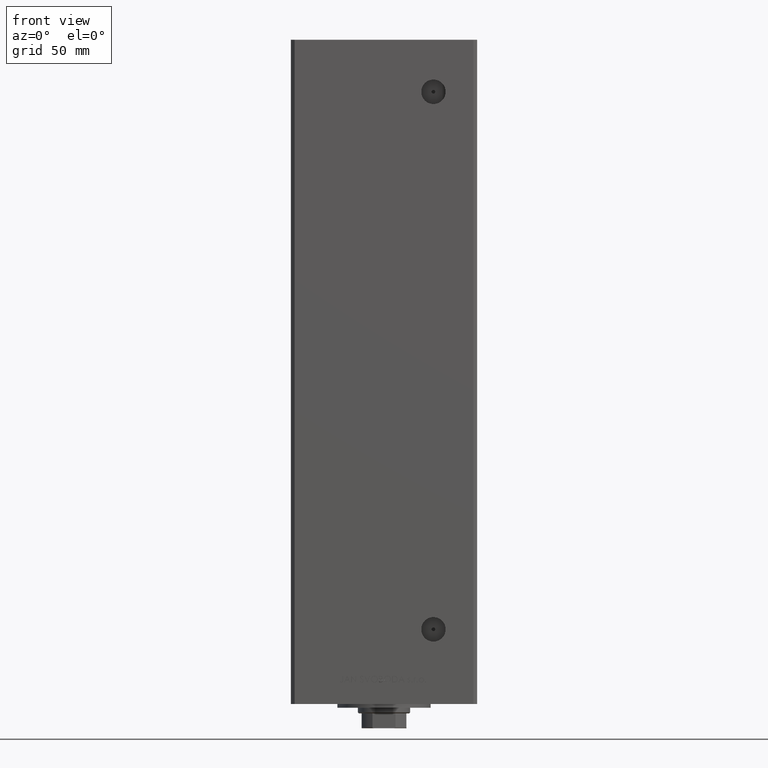
[diagram: clean part render]
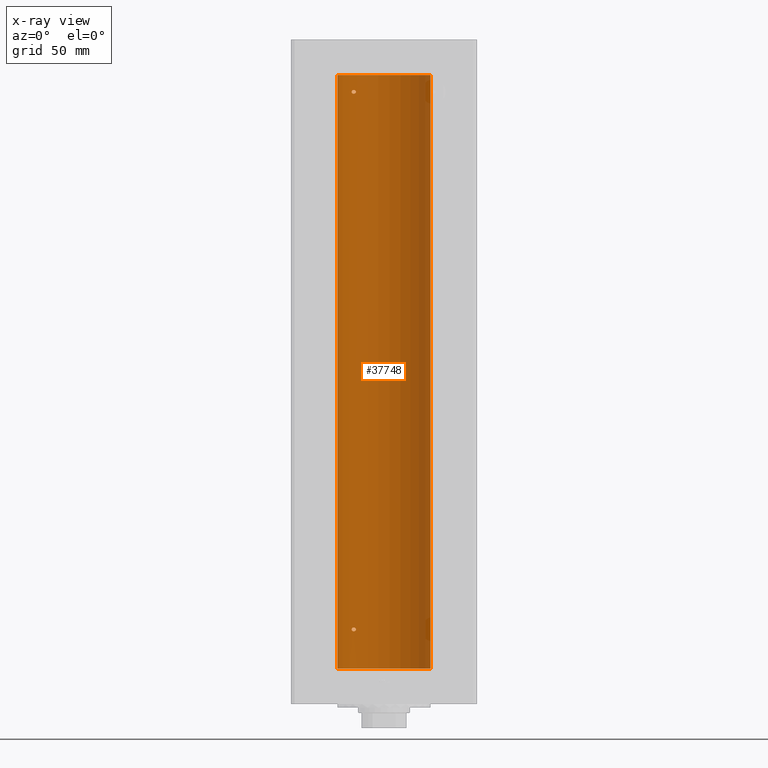
[diagram: x-ray — body ghosted, one internal face saturated and labeled with its STEP entity id]
A machine part, front view, then the same camera in x-ray: the body is ghosted and one INTERNAL B-rep face — a face not visible from any outside direction — is saturated and labeled: STEP entity #37748.
In plain terms, the highlighted cylindrical surface (partial cylindrical patch) has radius 25 mm, axis along (-0, -0, -1).
Its self-contained STEP definition (entity closure, byte-faithful):
#480 = CARTESIAN_POINT ( 'NONE',  ( -15.34666241858321634, 19.73581294411414078, 20.31212246053764048 ) ) ;
#775 = DIRECTION ( 'NONE',  ( -0.000000000000000000, -0.000000000000000000, -1.000000000000000000 ) ) ;
#787 = CARTESIAN_POINT ( 'NONE',  ( -15.58164749401203686, 19.55082150006403907, 20.15667807268521727 ) ) ;
#1218 = CARTESIAN_POINT ( 'NONE',  ( -15.34624284195508004, 19.73614442075938769, 310.1876185318513990 ) ) ;
#1280 = CARTESIAN_POINT ( 'NONE',  ( -16.46844752485323582, 18.81003400474356368, 308.5115443190389328 ) ) ;
#1421 = AXIS2_PLACEMENT_3D ( 'NONE', #47152, #9197, #1568 ) ;
#1467 = CARTESIAN_POINT ( 'NONE',  ( -15.00000000000018829, 20.00000000000001776, 309.5840388036241961 ) ) ;
#1529 = CARTESIAN_POINT ( 'NONE',  ( -25.00000000000000000, 0.000000000000000000, 318.5000000000000000 ) ) ;
#1535 = CARTESIAN_POINT ( 'NONE',  ( -15.95808436639357630, 19.24489366819302205, 308.5242608788495886 ) ) ;
#1568 = DIRECTION ( 'NONE',  ( -1.000000000000000000, 0.000000000000000000, 0.000000000000000000 ) ) ;
#1718 = CARTESIAN_POINT ( 'NONE',  ( -17.19010376497218218, 18.15221652163113930, 310.0356701235680248 ) ) ;
#1730 = ORIENTED_EDGE ( 'NONE', *, *, #12968, .F. ) ;
#1779 = CARTESIAN_POINT ( 'NONE',  ( -16.83415218046510020, 18.48332662461727693, 308.6343172662811298 ) ) ;
#1966 = CARTESIAN_POINT ( 'NONE',  ( -15.95796937689562789, 19.24499537862566356, 310.4757730996522582 ) ) ;
#3437 = CARTESIAN_POINT ( 'NONE',  ( -17.34935157289806540, 17.99999999999981526, 309.5000000000001137 ) ) ;
#3707 = VERTEX_POINT ( 'NONE', #9705 ) ;
#4319 = CARTESIAN_POINT ( 'NONE',  ( -14.99999999999999112, 20.00000000000000711, 309.5000000000000000 ) ) ;
#4337 = EDGE_LOOP ( 'NONE', ( #4985, #5170 ) ) ;
#4575 = CARTESIAN_POINT ( 'NONE',  ( -15.00000000000018829, 20.00000000000002132, 309.4159474586025453 ) ) ;
#4770 = CARTESIAN_POINT ( 'NONE',  ( -16.72476285461317858, 18.58415905903083143, 310.4449447607956927 ) ) ;
#4810 = CARTESIAN_POINT ( 'NONE',  ( -15.01482636753736166, 19.98889854010113254, 20.83120266100772611 ) ) ;
#4835 = CARTESIAN_POINT ( 'NONE',  ( -16.34293146994550838, 18.91921593628410392, 308.4973425906726447 ) ) ;
#4985 = ORIENTED_EDGE ( 'NONE', *, *, #32329, .F. ) ;
#4995 = VERTEX_POINT ( 'NONE', #3437 ) ;
#5096 = CARTESIAN_POINT ( 'NONE',  ( -16.08757264251631369, 19.13682698743035360, 308.5034427658482628 ) ) ;
#5170 = ORIENTED_EDGE ( 'NONE', *, *, #46545, .F. ) ;
#5239 = VERTEX_POINT ( 'NONE', #4319 ) ;
#5283 = CARTESIAN_POINT ( 'NONE',  ( -16.08745393861404338, 19.13692152169250349, 310.4965015099870129 ) ) ;
#5343 = CARTESIAN_POINT ( 'NONE',  ( -15.06722189748646734, 19.94943357555940366, 309.1759803248789353 ) ) ;
#5356 = CARTESIAN_POINT ( 'NONE',  ( -17.05249165747622442, 18.28208333366434601, 20.29221922003643996 ) ) ;
#5421 = VERTEX_POINT ( 'NONE', #5779 ) ;
#5592 = CARTESIAN_POINT ( 'NONE',  ( -15.58164749401198890, 19.55082150006406749, 308.6566780726851675 ) ) ;
#5779 = CARTESIAN_POINT ( 'NONE',  ( 25.00000000000000000, 3.061616997868383043E-15, 0.000000000000000000 ) ) ;
#5884 = VECTOR ( 'NONE', #775, 1000.000000000000000 ) ;
#6557 = EDGE_CURVE ( 'NONE', #3707, #12224, #11012, .T. ) ;
#7231 = CARTESIAN_POINT ( 'NONE',  ( -17.14593038898733113, 18.19399314418732061, 21.59594488319653038 ) ) ;
#7289 = ORIENTED_EDGE ( 'NONE', *, *, #28256, .F. ) ;
#8127 = EDGE_CURVE ( 'NONE', #5239, #4995, #43581, .T. ) ;
#8242 = CARTESIAN_POINT ( 'NONE',  ( -15.06763582406801483, 19.94912143246361325, 21.32506993877176882 ) ) ;
#8582 = CARTESIAN_POINT ( 'NONE',  ( -17.30163983552686702, 18.04615713653370079, 309.8360074727278857 ) ) ;
#8645 = CARTESIAN_POINT ( 'NONE',  ( -17.34935157289806540, 17.99999999999981526, 309.5000000000001137 ) ) ;
#8647 = LINE ( 'NONE', #46594, #5884 ) ;
#9176 = CARTESIAN_POINT ( 'NONE',  ( -17.34935157289749696, 17.99999999999998579, 20.82899836042583175 ) ) ;
#9197 = DIRECTION ( 'NONE',  ( -0.000000000000000000, -0.000000000000000000, -1.000000000000000000 ) ) ;
#9416 = CARTESIAN_POINT ( 'NONE',  ( -15.95808436639362782, 19.24489366819297942, 20.02426087884955308 ) ) ;
#9705 = CARTESIAN_POINT ( 'NONE',  ( 25.00000000000000000, 3.061616997868383043E-15, 318.5000000000000000 ) ) ;
#11012 = CIRCLE ( 'NONE', #26385, 25.00000000000000000 ) ;
#11070 = EDGE_LOOP ( 'NONE', ( #1730, #15988 ) ) ;
#11454 = B_SPLINE_CURVE_WITH_KNOTS ( 'NONE', 3,
 ( #35482, #9176, #12457, #24595, #5356, #36229, #27876, #44091, #20778, #24079, #9416, #43075, #787, #480, #43285, #32387, #27578, #4810, #23793, #19987 ),
 .UNSPECIFIED., .F., .F.,
 ( 4, 2, 2, 2, 2, 2, 2, 2, 2, 4 ),
 ( 2.011680962688586771E-16, 0.0005040871078734975291, 0.001008174215746794047, 0.001512261323620090565, 0.002016348431493386866, 0.002520435539366683384, 0.003024522647239979902, 0.003528609755113272951, 0.003780653309049920342, 0.004032696862986568168 ),
 .UNSPECIFIED. ) ;
#11701 = EDGE_CURVE ( 'NONE', #12224, #20168, #13438, .T. ) ;
#11778 = CARTESIAN_POINT ( 'NONE',  ( -16.46913072925707056, 18.81168496547888580, 22.00577755881143815 ) ) ;
#11834 = VERTEX_POINT ( 'NONE', #22743 ) ;
#12224 = VERTEX_POINT ( 'NONE', #20337 ) ;
#12380 = CARTESIAN_POINT ( 'NONE',  ( -17.05007833789892402, 18.28384926940287514, 310.2013739990121621 ) ) ;
#12457 = CARTESIAN_POINT ( 'NONE',  ( -17.30269557861145202, 18.04515136187498570, 20.66604208175575863 ) ) ;
#12683 = CARTESIAN_POINT ( 'NONE',  ( -15.70664578139649770, 19.45064696206094723, 308.6005795994922210 ) ) ;
#12831 = ORIENTED_EDGE ( 'NONE', *, *, #6557, .T. ) ;
#12879 = CARTESIAN_POINT ( 'NONE',  ( -17.34935157289745788, 18.00000000000001066, 309.6709736906063313 ) ) ;
#12968 = EDGE_CURVE ( 'NONE', #4995, #5239, #23331, .T. ) ;
#13438 = LINE ( 'NONE', #1529, #20907 ) ;
#15321 = CARTESIAN_POINT ( 'NONE',  ( -17.05007833789895955, 18.28384926940283606, 21.70137399901215858 ) ) ;
#15988 = ORIENTED_EDGE ( 'NONE', *, *, #8127, .F. ) ;
#16478 = CARTESIAN_POINT ( 'NONE',  ( -15.10490010356604706, 19.92096840819820613, 309.1037666713224894 ) ) ;
#16654 = CARTESIAN_POINT ( 'NONE',  ( -15.70535969280554411, 19.45169171760801063, 310.3989607721125026 ) ) ;
#16913 = CARTESIAN_POINT ( 'NONE',  ( -15.23594348686699362, 19.82115246225716376, 310.0887219326857576 ) ) ;
#17162 = CARTESIAN_POINT ( 'NONE',  ( -16.46913072925704213, 18.81168496547890001, 310.5057775588113600 ) ) ;
#17266 = CARTESIAN_POINT ( 'NONE',  ( -25.00000000000000000, 0.000000000000000000, 0.000000000000000000 ) ) ;
#17679 = DIRECTION ( 'NONE',  ( 1.000000000000000000, 0.000000000000000000, 0.000000000000000000 ) ) ;
#18145 = CARTESIAN_POINT ( 'NONE',  ( 0.000000000000000000, 0.000000000000000000, 318.5000000000000000 ) ) ;
#18853 = CARTESIAN_POINT ( 'NONE',  ( -15.58230678163764260, 19.55030131031895380, 21.84373948670296173 ) ) ;
#18886 = DIRECTION ( 'NONE',  ( -0.000000000000000000, 0.000000000000000000, 1.000000000000000000 ) ) ;
#19095 = CARTESIAN_POINT ( 'NONE',  ( -15.00000000000021316, 19.99999999999998934, 21.08403880362418548 ) ) ;
#19359 = CARTESIAN_POINT ( 'NONE',  ( -17.19010376497224968, 18.15221652163108601, 21.53567012356803545 ) ) ;
#19987 = CARTESIAN_POINT ( 'NONE',  ( -15.00000000000002842, 19.99999999999998224, 21.00000000000001776 ) ) ;
#20168 = VERTEX_POINT ( 'NONE', #17266 ) ;
#20337 = CARTESIAN_POINT ( 'NONE',  ( -25.00000000000000000, 0.000000000000000000, 318.5000000000000000 ) ) ;
#20705 = CARTESIAN_POINT ( 'NONE',  ( -15.58230678163760707, 19.55030131031896801, 310.3437394867029866 ) ) ;
#20778 = CARTESIAN_POINT ( 'NONE',  ( -16.34293146994555812, 18.91921593628406129, 19.99734259067264119 ) ) ;
#20907 = VECTOR ( 'NONE', #36466, 1000.000000000000000 ) ;
#22005 = CIRCLE ( 'NONE', #39002, 25.00000000000000000 ) ;
#22743 = CARTESIAN_POINT ( 'NONE',  ( -15.00000000000002842, 19.99999999999998224, 21.00000000000001776 ) ) ;
#22906 = CARTESIAN_POINT ( 'NONE',  ( -15.70535969280557254, 19.45169171760800708, 21.89896077211251679 ) ) ;
#23331 = B_SPLINE_CURVE_WITH_KNOTS ( 'NONE', 3,
 ( #8645, #24580, #32415, #31653, #43059, #1779, #27608, #1280, #4835, #5096, #1535, #12683, #5592, #35460, #24066, #16478, #5343, #44080, #4575, #39510 ),
 .UNSPECIFIED., .F., .F.,
 ( 4, 2, 2, 2, 2, 2, 2, 2, 2, 4 ),
 ( 2.254873622441466949E-16, 0.0005040871078735212731, 0.001008174215746817032, 0.001512261323620112683, 0.002016348431493408550, 0.002520435539366704635, 0.003024522647239999851, 0.003528609755113295936, 0.003780653309049942460, 0.004032696862986588984 ),
 .UNSPECIFIED. ) ;
#23793 = CARTESIAN_POINT ( 'NONE',  ( -15.00000000000022027, 20.00000000000000355, 20.91594745860246007 ) ) ;
#23854 = CYLINDRICAL_SURFACE ( 'NONE', #1421, 25.00000000000000000 ) ;
#24066 = CARTESIAN_POINT ( 'NONE',  ( -15.23538646979296729, 19.82157806413533052, 308.9119998952827473 ) ) ;
#24079 = CARTESIAN_POINT ( 'NONE',  ( -16.08757264251635277, 19.13682698743030386, 20.00344276584821657 ) ) ;
#24516 = CARTESIAN_POINT ( 'NONE',  ( -17.14593038898728494, 18.19399314418735614, 310.0959448831965233 ) ) ;
#24580 = CARTESIAN_POINT ( 'NONE',  ( -17.34935157289746854, 18.00000000000000711, 309.3289983604257145 ) ) ;
#24595 = CARTESIAN_POINT ( 'NONE',  ( -17.15234217094410596, 18.18812579706693100, 20.39657304377498193 ) ) ;
#25015 = CARTESIAN_POINT ( 'NONE',  ( -15.10490800566735459, 19.92096305044240623, 309.8962931740442173 ) ) ;
#25465 = EDGE_CURVE ( 'NONE', #3707, #5421, #8647, .T. ) ;
#26385 = AXIS2_PLACEMENT_3D ( 'NONE', #18145, #18886, #45230 ) ;
#26447 = CARTESIAN_POINT ( 'NONE',  ( -16.72476285461321766, 18.58415905903079945, 21.94494476079571754 ) ) ;
#27578 = CARTESIAN_POINT ( 'NONE',  ( -15.06722189748651175, 19.94943357555936458, 20.67598032487890336 ) ) ;
#27608 = CARTESIAN_POINT ( 'NONE',  ( -16.71492528194900373, 18.59135325782703418, 308.5801415583420635 ) ) ;
#27876 = CARTESIAN_POINT ( 'NONE',  ( -16.71492528194906768, 18.59135325782697734, 20.08014155834207060 ) ) ;
#28256 = EDGE_CURVE ( 'NONE', #5421, #20168, #22005, .T. ) ;
#30738 = CARTESIAN_POINT ( 'NONE',  ( -17.34935157289810093, 17.99999999999978328, 21.00000000000011724 ) ) ;
#31239 = CARTESIAN_POINT ( 'NONE',  ( -16.99843849356152248, 18.33190197607051886, 21.74683351457567682 ) ) ;
#31653 = CARTESIAN_POINT ( 'NONE',  ( -17.15234217094407754, 18.18812579706694876, 308.8965730437751063 ) ) ;
#32195 = FACE_BOUND ( 'NONE', #4337, .T. ) ;
#32329 = EDGE_CURVE ( 'NONE', #34211, #11834, #11454, .T. ) ;
#32387 = CARTESIAN_POINT ( 'NONE',  ( -15.10490010356607904, 19.92096840819818127, 20.60376667132253914 ) ) ;
#32415 = CARTESIAN_POINT ( 'NONE',  ( -17.30269557861141649, 18.04515136187501412, 309.1660420817556769 ) ) ;
#32606 = CARTESIAN_POINT ( 'NONE',  ( -17.34935157289806540, 17.99999999999981526, 309.5000000000001137 ) ) ;
#32954 = CARTESIAN_POINT ( 'NONE',  ( -17.34935157289810093, 17.99999999999978328, 21.00000000000011724 ) ) ;
#34211 = VERTEX_POINT ( 'NONE', #32954 ) ;
#35460 = CARTESIAN_POINT ( 'NONE',  ( -15.34666241858316482, 19.73581294411416920, 308.8121224605376369 ) ) ;
#35482 = CARTESIAN_POINT ( 'NONE',  ( -17.34935157289810093, 17.99999999999978328, 21.00000000000011724 ) ) ;
#35618 = ORIENTED_EDGE ( 'NONE', *, *, #11701, .T. ) ;
#35655 = CARTESIAN_POINT ( 'NONE',  ( -15.06763582406798996, 19.94912143246364877, 309.8250699387717759 ) ) ;
#35910 = CARTESIAN_POINT ( 'NONE',  ( -14.99999999999999112, 20.00000000000000711, 309.5000000000000000 ) ) ;
#36008 = FACE_BOUND ( 'NONE', #11070, .T. ) ;
#36229 = CARTESIAN_POINT ( 'NONE',  ( -16.83415218046515349, 18.48332662461723785, 20.13431726628117602 ) ) ;
#36466 = DIRECTION ( 'NONE',  ( -0.000000000000000000, -0.000000000000000000, -1.000000000000000000 ) ) ;
#37173 = DIRECTION ( 'NONE',  ( -0.000000000000000000, 0.000000000000000000, 1.000000000000000000 ) ) ;
#37748 = ADVANCED_FACE ( 'NONE', ( #43606, #32195, #36008 ), #23854, .F. ) ;
#38355 = CARTESIAN_POINT ( 'NONE',  ( -16.08745393861406825, 19.13692152169247507, 21.99650150998695608 ) ) ;
#38597 = CARTESIAN_POINT ( 'NONE',  ( -15.34624284195510135, 19.73614442075936992, 21.68761853185132793 ) ) ;
#39002 = AXIS2_PLACEMENT_3D ( 'NONE', #44282, #37173, #17679 ) ;
#39114 = CARTESIAN_POINT ( 'NONE',  ( -15.95796937689564565, 19.24499537862563869, 21.97577309965221559 ) ) ;
#39510 = CARTESIAN_POINT ( 'NONE',  ( -14.99999999999999112, 20.00000000000000711, 309.5000000000000000 ) ) ;
#40561 = B_SPLINE_CURVE_WITH_KNOTS ( 'NONE', 3,
 ( #46441, #19095, #49997, #8242, #45689, #41890, #38597, #18853, #22906, #39114, #38355, #11778, #26447, #31239, #15321, #7231, #19359, #49740, #45943, #30738 ),
 .UNSPECIFIED., .F., .F.,
 ( 4, 2, 2, 2, 2, 2, 2, 2, 2, 4 ),
 ( 0.004032696862986568168, 0.004284699222246932983, 0.004536701581507298665, 0.005040706300028030031, 0.005544711018548761396, 0.006048715737069493628, 0.007056725174110963297, 0.007308727533371326378, 0.007560729892631690326, 0.008064734611152429497 ),
 .UNSPECIFIED. ) ;
#41890 = CARTESIAN_POINT ( 'NONE',  ( -15.23594348686703448, 19.82115246225713179, 21.58872193268584638 ) ) ;
#42755 = EDGE_LOOP ( 'NONE', ( #46735, #12831, #35618, #7289 ) ) ;
#43059 = CARTESIAN_POINT ( 'NONE',  ( -17.05249165747618534, 18.28208333366439220, 308.7922192200364293 ) ) ;
#43075 = CARTESIAN_POINT ( 'NONE',  ( -15.70664578139654566, 19.45064696206090105, 20.10057959949213213 ) ) ;
#43247 = CARTESIAN_POINT ( 'NONE',  ( -15.01476641895662034, 19.98894406010707314, 309.6687945634013772 ) ) ;
#43285 = CARTESIAN_POINT ( 'NONE',  ( -15.23538646979301170, 19.82157806413531631, 20.41199989528278991 ) ) ;
#43581 = B_SPLINE_CURVE_WITH_KNOTS ( 'NONE', 3,
 ( #35910, #1467, #43247, #35655, #25015, #16913, #1218, #20705, #16654, #1966, #5283, #17162, #4770, #44016, #12380, #24516, #1718, #8582, #12879, #32606 ),
 .UNSPECIFIED., .F., .F.,
 ( 4, 2, 2, 2, 2, 2, 2, 2, 2, 4 ),
 ( 0.004032696862986588984, 0.004284699222247021454, 0.004536701581507453923, 0.005040706300028190492, 0.005544711018548927062, 0.006048715737069663631, 0.007056725174111138504, 0.007308727533371464288, 0.007560729892631788338, 0.008064734611152429497 ),
 .UNSPECIFIED. ) ;
#43606 = FACE_OUTER_BOUND ( 'NONE', #42755, .T. ) ;
#44016 = CARTESIAN_POINT ( 'NONE',  ( -16.99843849356147985, 18.33190197607055438, 310.2468335145757692 ) ) ;
#44080 = CARTESIAN_POINT ( 'NONE',  ( -15.01482636753732258, 19.98889854010116807, 309.3312026610076941 ) ) ;
#44091 = CARTESIAN_POINT ( 'NONE',  ( -16.46844752485328911, 18.81003400474351039, 20.01154431903895059 ) ) ;
#44282 = CARTESIAN_POINT ( 'NONE',  ( 0.000000000000000000, 0.000000000000000000, 0.000000000000000000 ) ) ;
#45230 = DIRECTION ( 'NONE',  ( 1.000000000000000000, 0.000000000000000000, 0.000000000000000000 ) ) ;
#45689 = CARTESIAN_POINT ( 'NONE',  ( -15.10490800566739011, 19.92096305044238491, 21.39629317404428122 ) ) ;
#45943 = CARTESIAN_POINT ( 'NONE',  ( -17.34935157289749696, 17.99999999999998224, 21.17097369060635259 ) ) ;
#46441 = CARTESIAN_POINT ( 'NONE',  ( -15.00000000000002842, 19.99999999999998224, 21.00000000000001776 ) ) ;
#46545 = EDGE_CURVE ( 'NONE', #11834, #34211, #40561, .T. ) ;
#46594 = CARTESIAN_POINT ( 'NONE',  ( 25.00000000000000000, 3.061616997868383043E-15, 318.5000000000000000 ) ) ;
#46735 = ORIENTED_EDGE ( 'NONE', *, *, #25465, .F. ) ;
#47152 = CARTESIAN_POINT ( 'NONE',  ( 0.000000000000000000, 0.000000000000000000, 318.5000000000000000 ) ) ;
#49740 = CARTESIAN_POINT ( 'NONE',  ( -17.30163983552693452, 18.04615713653364750, 21.33600747272780396 ) ) ;
#49997 = CARTESIAN_POINT ( 'NONE',  ( -15.01476641895664876, 19.98894406010705183, 21.16879456340136656 ) ) ;